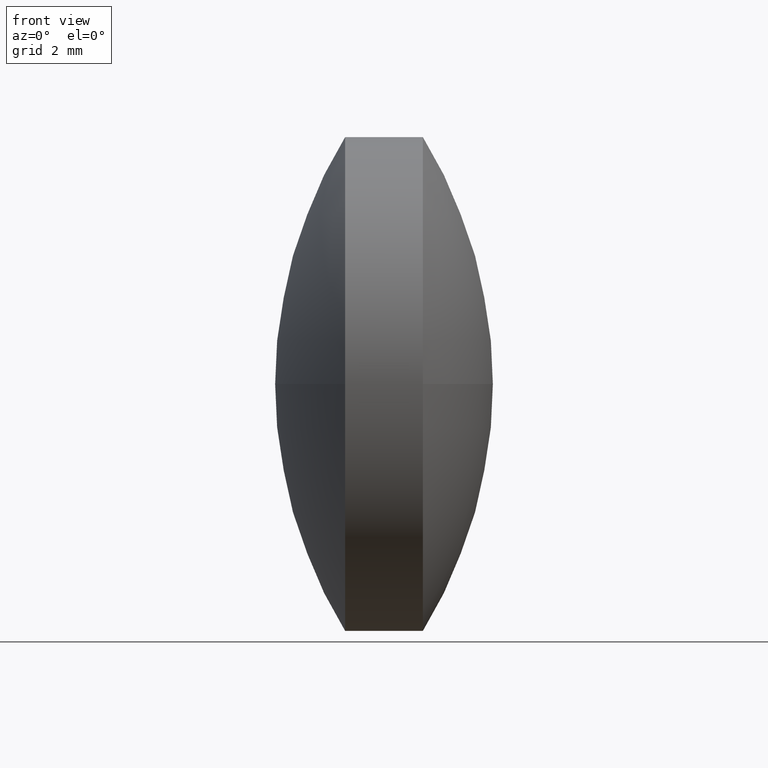
[diagram: clean part render]
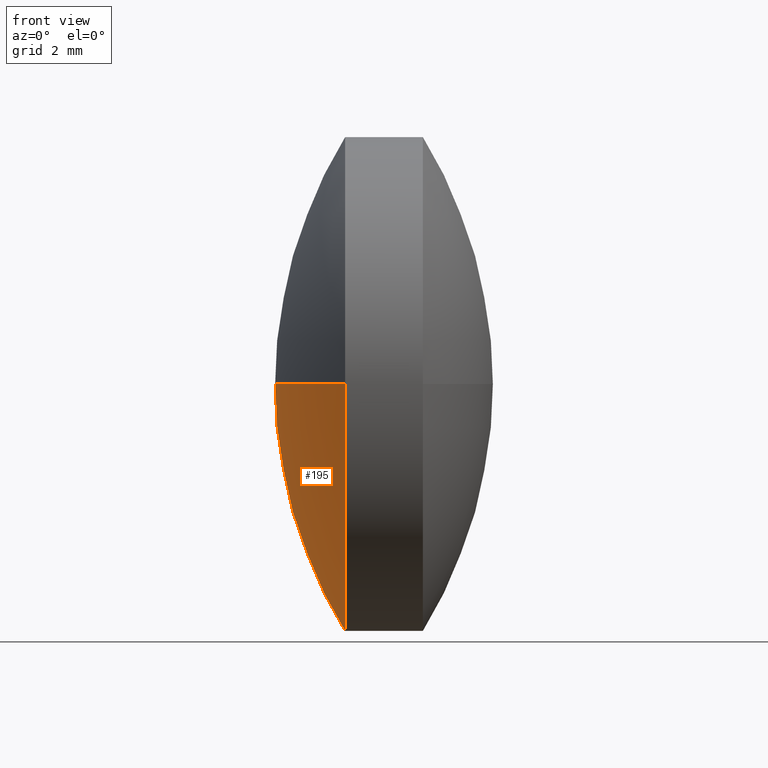
[diagram: same view with one face highlighted and labeled with its STEP entity id]
A machine part, front view. The second image highlights one B-rep face of the part: STEP entity #195.
In plain terms, the highlighted spherical surface has radius 12.101 mm.
Its self-contained STEP definition (entity closure, byte-faithful):
#4 = AXIS2_PLACEMENT_3D ( 'NONE', #298, #65, #247 ) ;
#18 = AXIS2_PLACEMENT_3D ( 'NONE', #84, #305, #229 ) ;
#43 = CARTESIAN_POINT ( 'NONE',  ( 42.22906260161698100, 30.65805651159238800, 0.0000000000000000000 ) ) ;
#48 = CIRCLE ( 'NONE', #107, 12.10096423222029000 ) ;
#49 = EDGE_CURVE ( 'NONE', #99, #191, #252, .T. ) ;
#59 = AXIS2_PLACEMENT_3D ( 'NONE', #227, #83, #300 ) ;
#65 = DIRECTION ( 'NONE',  ( -1.000000000000000000, -0.0000000000000000000, -0.0000000000000000000 ) ) ;
#81 = VERTEX_POINT ( 'NONE', #173 ) ;
#83 = DIRECTION ( 'NONE',  ( -0.0000000000000000000, 0.0000000000000000000, -1.000000000000000000 ) ) ;
#84 = CARTESIAN_POINT ( 'NONE',  ( 42.22906260161698100, 24.30805651159239000, 0.0000000000000000000 ) ) ;
#90 = CIRCLE ( 'NONE', #18, 6.349999999999997900 ) ;
#99 = VERTEX_POINT ( 'NONE', #134 ) ;
#102 = ORIENTED_EDGE ( 'NONE', *, *, #335, .T. ) ;
#107 = AXIS2_PLACEMENT_3D ( 'NONE', #233, #144, #141 ) ;
#130 = AXIS2_PLACEMENT_3D ( 'NONE', #178, #332, #331 ) ;
#134 = CARTESIAN_POINT ( 'NONE',  ( 42.22906260161698100, 24.30805651159239000, -6.349999999999997900 ) ) ;
#141 = DIRECTION ( 'NONE',  ( 0.0000000000000000000, 1.000000000000000000, 1.224646799147353000E-016 ) ) ;
#144 = DIRECTION ( 'NONE',  ( 0.0000000000000000000, 1.224646799147353200E-016, -1.000000000000000000 ) ) ;
#147 = CIRCLE ( 'NONE', #130, 12.10096423222029000 ) ;
#173 = CARTESIAN_POINT ( 'NONE',  ( 40.42910974447412500, 24.30805651159238700, 0.0000000000000000000 ) ) ;
#178 = CARTESIAN_POINT ( 'NONE',  ( 52.53007397669441800, 24.30805651159238700, 0.0000000000000000000 ) ) ;
#185 = ORIENTED_EDGE ( 'NONE', *, *, #275, .T. ) ;
#191 = VERTEX_POINT ( 'NONE', #269 ) ;
#195 = ADVANCED_FACE ( 'NONE', ( #315 ), #288, .T. ) ;
#204 = EDGE_CURVE ( 'NONE', #290, #81, #147, .T. ) ;
#217 = ORIENTED_EDGE ( 'NONE', *, *, #49, .T. ) ;
#220 = EDGE_LOOP ( 'NONE', ( #185, #217, #102, #226 ) ) ;
#226 = ORIENTED_EDGE ( 'NONE', *, *, #204, .F. ) ;
#227 = CARTESIAN_POINT ( 'NONE',  ( 52.53007397669441800, 24.30805651159238700, 0.0000000000000000000 ) ) ;
#229 = DIRECTION ( 'NONE',  ( 0.0000000000000000000, 0.0000000000000000000, 1.000000000000000000 ) ) ;
#233 = CARTESIAN_POINT ( 'NONE',  ( 52.53007397669441800, 24.30805651159238700, 0.0000000000000000000 ) ) ;
#247 = DIRECTION ( 'NONE',  ( 0.0000000000000000000, 0.0000000000000000000, 1.000000000000000000 ) ) ;
#252 = CIRCLE ( 'NONE', #4, 6.349999999999997900 ) ;
#269 = CARTESIAN_POINT ( 'NONE',  ( 42.22906260161698100, 17.95805651159238900, -7.776507174585690200E-016 ) ) ;
#275 = EDGE_CURVE ( 'NONE', #290, #99, #90, .T. ) ;
#288 = SPHERICAL_SURFACE ( 'NONE', #59, 12.10096423222028700 ) ;
#290 = VERTEX_POINT ( 'NONE', #43 ) ;
#298 = CARTESIAN_POINT ( 'NONE',  ( 42.22906260161698100, 24.30805651159239000, 0.0000000000000000000 ) ) ;
#300 = DIRECTION ( 'NONE',  ( 0.0000000000000000000, 1.000000000000000000, 0.0000000000000000000 ) ) ;
#305 = DIRECTION ( 'NONE',  ( -1.000000000000000000, -0.0000000000000000000, -0.0000000000000000000 ) ) ;
#315 = FACE_OUTER_BOUND ( 'NONE', #220, .T. ) ;
#331 = DIRECTION ( 'NONE',  ( 1.000000000000000000, 0.0000000000000000000, 0.0000000000000000000 ) ) ;
#332 = DIRECTION ( 'NONE',  ( -0.0000000000000000000, 0.0000000000000000000, 1.000000000000000000 ) ) ;
#335 = EDGE_CURVE ( 'NONE', #191, #81, #48, .T. ) ;